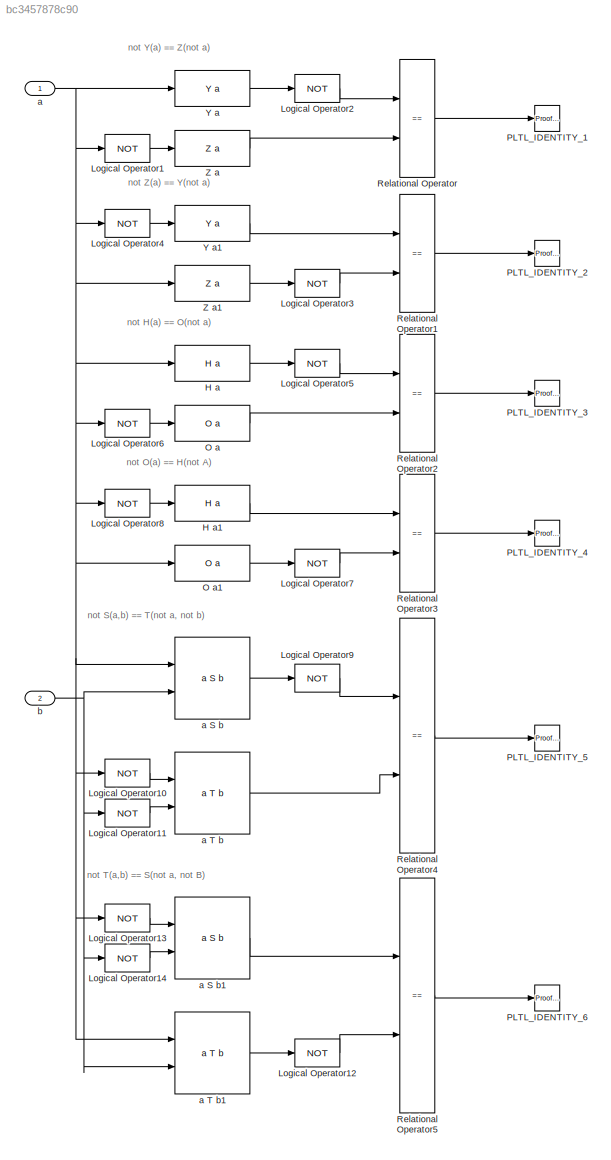
MODEL slx_bc3457878c90
KIND model
BLOCK [Reference] H a  REF=patterns_library/H a  (lib defined in slx_1b5033acf6a4)
  Ports = [1, 1]
  SourceBlock = patterns_library/H a
  SourceType = SubSystem
BLOCK [Reference] H a1  REF=patterns_library/H a  (lib defined in slx_1b5033acf6a4)
  Ports = [1, 1]
  SourceBlock = patterns_library/H a
  SourceType = SubSystem
BLOCK [Logic] Logical Operator1
  AllPortsSameDT = off
  Operator = NOT
  OutDataTypeStr = boolean
  Ports = [1, 1]
BLOCK [Logic] Logical Operator10
  AllPortsSameDT = off
  Operator = NOT
  OutDataTypeStr = boolean
  Ports = [1, 1]
BLOCK [Logic] Logical Operator11
  AllPortsSameDT = off
  Operator = NOT
  OutDataTypeStr = boolean
  Ports = [1, 1]
BLOCK [Logic] Logical Operator12
  AllPortsSameDT = off
  Operator = NOT
  OutDataTypeStr = boolean
  Ports = [1, 1]
BLOCK [Logic] Logical Operator13
  AllPortsSameDT = off
  Operator = NOT
  OutDataTypeStr = boolean
  Ports = [1, 1]
BLOCK [Logic] Logical Operator14
  AllPortsSameDT = off
  Operator = NOT
  OutDataTypeStr = boolean
  Ports = [1, 1]
BLOCK [Logic] Logical Operator2
  AllPortsSameDT = off
  Operator = NOT
  OutDataTypeStr = boolean
  Ports = [1, 1]
BLOCK [Logic] Logical Operator3
  AllPortsSameDT = off
  Operator = NOT
  OutDataTypeStr = boolean
  Ports = [1, 1]
BLOCK [Logic] Logical Operator4
  AllPortsSameDT = off
  Operator = NOT
  OutDataTypeStr = boolean
  Ports = [1, 1]
BLOCK [Logic] Logical Operator5
  AllPortsSameDT = off
  Operator = NOT
  OutDataTypeStr = boolean
  Ports = [1, 1]
BLOCK [Logic] Logical Operator6
  AllPortsSameDT = off
  Operator = NOT
  OutDataTypeStr = boolean
  Ports = [1, 1]
BLOCK [Logic] Logical Operator7
  AllPortsSameDT = off
  Operator = NOT
  OutDataTypeStr = boolean
  Ports = [1, 1]
BLOCK [Logic] Logical Operator8
  AllPortsSameDT = off
  Operator = NOT
  OutDataTypeStr = boolean
  Ports = [1, 1]
BLOCK [Logic] Logical Operator9
  AllPortsSameDT = off
  Operator = NOT
  OutDataTypeStr = boolean
  Ports = [1, 1]
BLOCK [Reference] O a  REF=patterns_library/O a  (lib defined in slx_1b5033acf6a4)
  Ports = [1, 1]
  SourceBlock = patterns_library/O a
  SourceType = SubSystem
BLOCK [Reference] O a1  REF=patterns_library/O a  (lib defined in slx_1b5033acf6a4)
  Ports = [1, 1]
  SourceBlock = patterns_library/O a
  SourceType = SubSystem
BLOCK [Reference] PLTL_IDENTITY_1  REF=sldvlib/Objectives and Constraints/Proof Objective
  AttributesFormatString = %<intervals>
  Ports = [1]
  SourceBlock = sldvlib/Objectives and Constraints/Proof Objective
  SourceType = Design Verifier Proof Objective
  customAVTBlockType = Proof Objective
  dispValues = on
  enableStopSim = off
  enabled = on
  intervals = true
  outEnabled = off
BLOCK [Reference] PLTL_IDENTITY_2  REF=sldvlib/Objectives and Constraints/Proof Objective
  AttributesFormatString = %<intervals>
  Ports = [1]
  SourceBlock = sldvlib/Objectives and Constraints/Proof Objective
  SourceType = Design Verifier Proof Objective
  customAVTBlockType = Proof Objective
  dispValues = on
  enableStopSim = off
  enabled = on
  intervals = true
  outEnabled = off
BLOCK [Reference] PLTL_IDENTITY_3  REF=sldvlib/Objectives and Constraints/Proof Objective
  AttributesFormatString = %<intervals>
  Ports = [1]
  SourceBlock = sldvlib/Objectives and Constraints/Proof Objective
  SourceType = Design Verifier Proof Objective
  customAVTBlockType = Proof Objective
  dispValues = on
  enableStopSim = off
  enabled = on
  intervals = true
  outEnabled = off
BLOCK [Reference] PLTL_IDENTITY_4  REF=sldvlib/Objectives and Constraints/Proof Objective
  AttributesFormatString = %<intervals>
  Ports = [1]
  SourceBlock = sldvlib/Objectives and Constraints/Proof Objective
  SourceType = Design Verifier Proof Objective
  customAVTBlockType = Proof Objective
  dispValues = on
  enableStopSim = off
  enabled = on
  intervals = true
  outEnabled = off
BLOCK [Reference] PLTL_IDENTITY_5  REF=sldvlib/Objectives and Constraints/Proof Objective
  AttributesFormatString = %<intervals>
  Ports = [1]
  SourceBlock = sldvlib/Objectives and Constraints/Proof Objective
  SourceType = Design Verifier Proof Objective
  customAVTBlockType = Proof Objective
  dispValues = on
  enableStopSim = off
  enabled = on
  intervals = true
  outEnabled = off
BLOCK [Reference] PLTL_IDENTITY_6  REF=sldvlib/Objectives and Constraints/Proof Objective
  AttributesFormatString = %<intervals>
  Ports = [1]
  SourceBlock = sldvlib/Objectives and Constraints/Proof Objective
  SourceType = Design Verifier Proof Objective
  customAVTBlockType = Proof Objective
  dispValues = on
  enableStopSim = off
  enabled = on
  intervals = true
  outEnabled = off
BLOCK [RelationalOperator] Relational Operator
  InputSameDT = off
  Operator = ==
  OutDataTypeStr = boolean
  Ports = [2, 1]
BLOCK [RelationalOperator] Relational Operator1
  InputSameDT = off
  Operator = ==
  OutDataTypeStr = boolean
  Ports = [2, 1]
BLOCK [RelationalOperator] Relational Operator2
  InputSameDT = off
  Operator = ==
  OutDataTypeStr = boolean
  Ports = [2, 1]
BLOCK [RelationalOperator] Relational Operator3
  InputSameDT = off
  Operator = ==
  OutDataTypeStr = boolean
  Ports = [2, 1]
BLOCK [RelationalOperator] Relational Operator4
  InputSameDT = off
  Operator = ==
  OutDataTypeStr = boolean
  Ports = [2, 1]
BLOCK [RelationalOperator] Relational Operator5
  InputSameDT = off
  Operator = ==
  OutDataTypeStr = boolean
  Ports = [2, 1]
BLOCK [Reference] Y a  REF=patterns_library/Y a  (lib defined in slx_1b5033acf6a4)
  Ports = [1, 1]
  SourceBlock = patterns_library/Y a
  SourceType = SubSystem
BLOCK [Reference] Y a1  REF=patterns_library/Y a  (lib defined in slx_1b5033acf6a4)
  Ports = [1, 1]
  SourceBlock = patterns_library/Y a
  SourceType = SubSystem
BLOCK [Reference] Z a  REF=patterns_library/Z a  (lib defined in slx_1b5033acf6a4)
  Ports = [1, 1]
  SourceBlock = patterns_library/Z a
  SourceType = SubSystem
BLOCK [Reference] Z a1  REF=patterns_library/Z a  (lib defined in slx_1b5033acf6a4)
  Ports = [1, 1]
  SourceBlock = patterns_library/Z a
  SourceType = SubSystem
BLOCK [Inport] a
  IconDisplay = Port number
  OutDataTypeStr = boolean
BLOCK [Reference] a S b  REF=patterns_library/a S b  (lib defined in slx_1b5033acf6a4)
  Ports = [2, 1]
  SourceBlock = patterns_library/a S b
  SourceType = SubSystem
BLOCK [Reference] a S b1  REF=patterns_library/a S b  (lib defined in slx_1b5033acf6a4)
  Ports = [2, 1]
  SourceBlock = patterns_library/a S b
  SourceType = SubSystem
BLOCK [Reference] a T b  REF=patterns_library/a T b  (lib defined in slx_1b5033acf6a4)
  Ports = [2, 1]
  SourceBlock = patterns_library/a T b
  SourceType = SubSystem
BLOCK [Reference] a T b1  REF=patterns_library/a T b  (lib defined in slx_1b5033acf6a4)
  Ports = [2, 1]
  SourceBlock = patterns_library/a T b
  SourceType = SubSystem
BLOCK [Inport] b
  IconDisplay = Port number
  OutDataTypeStr = boolean
  Port = 2
ANNOTATION (root): not H(a) == O(not a)
ANNOTATION (root): not O(a) == H(not A)
ANNOTATION (root): not S(a,b) == T(not a, not b)
ANNOTATION (root): not T(a,b) == S(not a, not B)
ANNOTATION (root): not Y(a) == Z(not a)
ANNOTATION (root): not Z(a) == Y(not a)
LINE H a1:1 -> Relational Operator3:1
LINE H a:1 -> Logical Operator5:1
LINE Logical Operator10:1 -> a T b:1
LINE Logical Operator11:1 -> a T b:2
LINE Logical Operator12:1 -> Relational Operator5:2
LINE Logical Operator13:1 -> a S b1:1
LINE Logical Operator14:1 -> a S b1:2
LINE Logical Operator1:1 -> Z a:1
LINE Logical Operator2:1 -> Relational Operator:1
LINE Logical Operator3:1 -> Relational Operator1:2
LINE Logical Operator4:1 -> Y a1:1
LINE Logical Operator5:1 -> Relational Operator2:1
LINE Logical Operator6:1 -> O a:1
LINE Logical Operator7:1 -> Relational Operator3:2
LINE Logical Operator8:1 -> H a1:1
LINE Logical Operator9:1 -> Relational Operator4:1
LINE O a1:1 -> Logical Operator7:1
LINE O a:1 -> Relational Operator2:2
LINE Relational Operator1:1 -> PLTL_IDENTITY_2:1
LINE Relational Operator2:1 -> PLTL_IDENTITY_3:1
LINE Relational Operator3:1 -> PLTL_IDENTITY_4:1
LINE Relational Operator4:1 -> PLTL_IDENTITY_5:1
LINE Relational Operator5:1 -> PLTL_IDENTITY_6:1
LINE Relational Operator:1 -> PLTL_IDENTITY_1:1
LINE Y a1:1 -> Relational Operator1:1
LINE Y a:1 -> Logical Operator2:1
LINE Z a1:1 -> Logical Operator3:1
LINE Z a:1 -> Relational Operator:2
LINE a S b1:1 -> Relational Operator5:1
LINE a S b:1 -> Logical Operator9:1
LINE a T b1:1 -> Logical Operator12:1
LINE a T b:1 -> Relational Operator4:2
NET a:1 -> H a:1, Logical Operator10:1, Logical Operator13:1, Logical Operator1:1, Logical Operator4:1, Logical Operator6:1, Logical Operator8:1, O a1:1, Y a:1, Z a1:1, a S b:1, a T b1:1
NET b:1 -> Logical Operator11:1, Logical Operator14:1, a S b:2, a T b1:2
note: NET lines group one-source signal fan-out (src -> all destinations, sorted); 1:1 wires keep LINE
